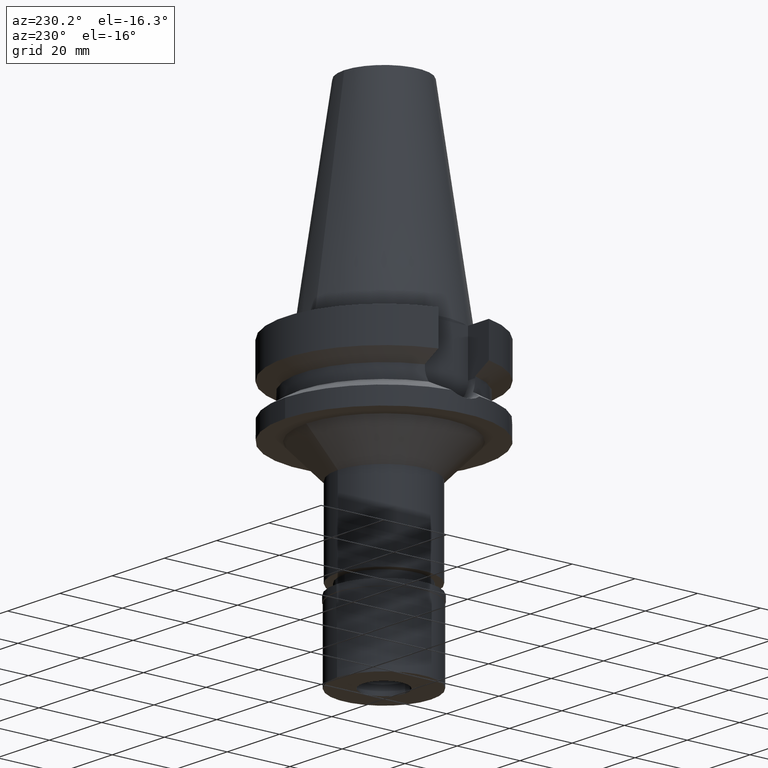
[diagram: clean part render]
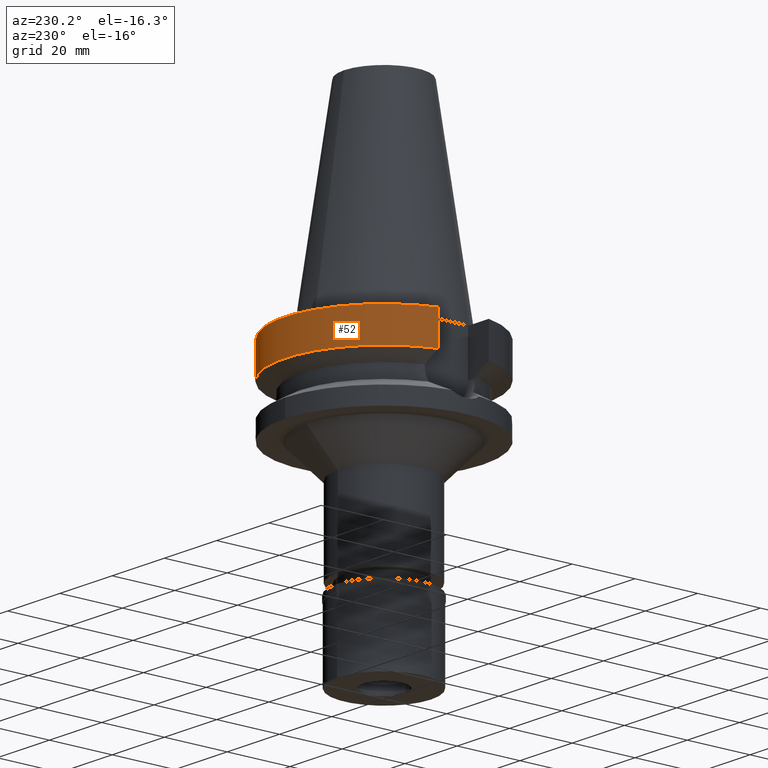
[diagram: same view with one face highlighted and labeled with its STEP entity id]
A machine part, auxiliary view. The second image highlights one B-rep face of the part: STEP entity #52.
In plain terms, the highlighted cylindrical surface (partial cylindrical patch) has radius 31.5 mm, axis along (0, 0, -1).
Its self-contained STEP definition (entity closure, byte-faithful):
#52 = ADVANCED_FACE ( 'NONE', ( #2710 ), #342, .T. ) ;
#98 = CARTESIAN_POINT ( 'NONE',  ( 0.0000000000000000000, 0.0000000000000000000, -1.000000000000000000 ) ) ;
#255 = VERTEX_POINT ( 'NONE', #1470 ) ;
#311 = DIRECTION ( 'NONE',  ( 0.0000000000000000000, 0.0000000000000000000, -1.000000000000000000 ) ) ;
#342 = CYLINDRICAL_SURFACE ( 'NONE', #975, 31.50000000000000000 ) ;
#471 = AXIS2_PLACEMENT_3D ( 'NONE', #1798, #2067, #1089 ) ;
#559 = VERTEX_POINT ( 'NONE', #1601 ) ;
#632 = ORIENTED_EDGE ( 'NONE', *, *, #1946, .F. ) ;
#657 = EDGE_CURVE ( 'NONE', #2685, #255, #2231, .T. ) ;
#690 = EDGE_CURVE ( 'NONE', #1864, #559, #1832, .T. ) ;
#824 = DIRECTION ( 'NONE',  ( 0.0000000000000000000, 0.0000000000000000000, -1.000000000000000000 ) ) ;
#975 = AXIS2_PLACEMENT_3D ( 'NONE', #1515, #311, #1280 ) ;
#1056 = DIRECTION ( 'NONE',  ( 0.0000000000000000000, 1.000000000000000000, 0.0000000000000000000 ) ) ;
#1089 = DIRECTION ( 'NONE',  ( 0.0000000000000000000, 1.000000000000000000, 0.0000000000000000000 ) ) ;
#1179 = CARTESIAN_POINT ( 'NONE',  ( 30.45402291419999941, 8.049999275871000393, -11.56551217475000115 ) ) ;
#1280 = DIRECTION ( 'NONE',  ( 0.0000000000000000000, -1.000000000000000000, 0.0000000000000000000 ) ) ;
#1458 = ORIENTED_EDGE ( 'NONE', *, *, #2801, .F. ) ;
#1470 = CARTESIAN_POINT ( 'NONE',  ( 30.45402272279000044, 8.050000000000000711, -1.000000000000000000 ) ) ;
#1515 = CARTESIAN_POINT ( 'NONE',  ( 0.0000000000000000000, 0.0000000000000000000, 0.0000000000000000000 ) ) ;
#1601 = CARTESIAN_POINT ( 'NONE',  ( -30.45402162665000034, 8.050004146799000893, -11.56546830006999826 ) ) ;
#1660 = DIRECTION ( 'NONE',  ( 1.037471174667017702E-07, 3.924860561236068061E-07, -0.9999999999999176215 ) ) ;
#1798 = CARTESIAN_POINT ( 'NONE',  ( 0.0000000000000000000, 0.0000000000000000000, -11.56550565266999975 ) ) ;
#1832 = CIRCLE ( 'NONE', #471, 31.50000000000000000 ) ;
#1864 = VERTEX_POINT ( 'NONE', #1179 ) ;
#1946 = EDGE_CURVE ( 'NONE', #2685, #559, #3069, .T. ) ;
#1993 = CARTESIAN_POINT ( 'NONE',  ( -30.45402272279000044, 8.050000000000000711, -1.000000000000000000 ) ) ;
#2067 = DIRECTION ( 'NONE',  ( 0.0000000000000000000, 0.0000000000000000000, 1.000000000000000000 ) ) ;
#2154 = ORIENTED_EDGE ( 'NONE', *, *, #657, .T. ) ;
#2227 = CARTESIAN_POINT ( 'NONE',  ( 30.45402291419999941, 8.049999275871000393, -11.56551217475000115 ) ) ;
#2231 = CIRCLE ( 'NONE', #2938, 31.50000000000000000 ) ;
#2256 = LINE ( 'NONE', #2227, #2629 ) ;
#2274 = ORIENTED_EDGE ( 'NONE', *, *, #690, .T. ) ;
#2320 = VECTOR ( 'NONE', #1660, 1000.000000000000000 ) ;
#2550 = CARTESIAN_POINT ( 'NONE',  ( -30.45402272279000044, 8.050000000000000711, -1.000000000000000000 ) ) ;
#2563 = EDGE_LOOP ( 'NONE', ( #632, #2154, #1458, #2274 ) ) ;
#2629 = VECTOR ( 'NONE', #2760, 1000.000000000000114 ) ;
#2685 = VERTEX_POINT ( 'NONE', #1993 ) ;
#2710 = FACE_OUTER_BOUND ( 'NONE', #2563, .T. ) ;
#2760 = DIRECTION ( 'NONE',  ( -1.811653032707990821E-08, 6.853703416274961636E-08, 0.9999999999999974465 ) ) ;
#2801 = EDGE_CURVE ( 'NONE', #1864, #255, #2256, .T. ) ;
#2938 = AXIS2_PLACEMENT_3D ( 'NONE', #98, #824, #1056 ) ;
#3069 = LINE ( 'NONE', #2550, #2320 ) ;